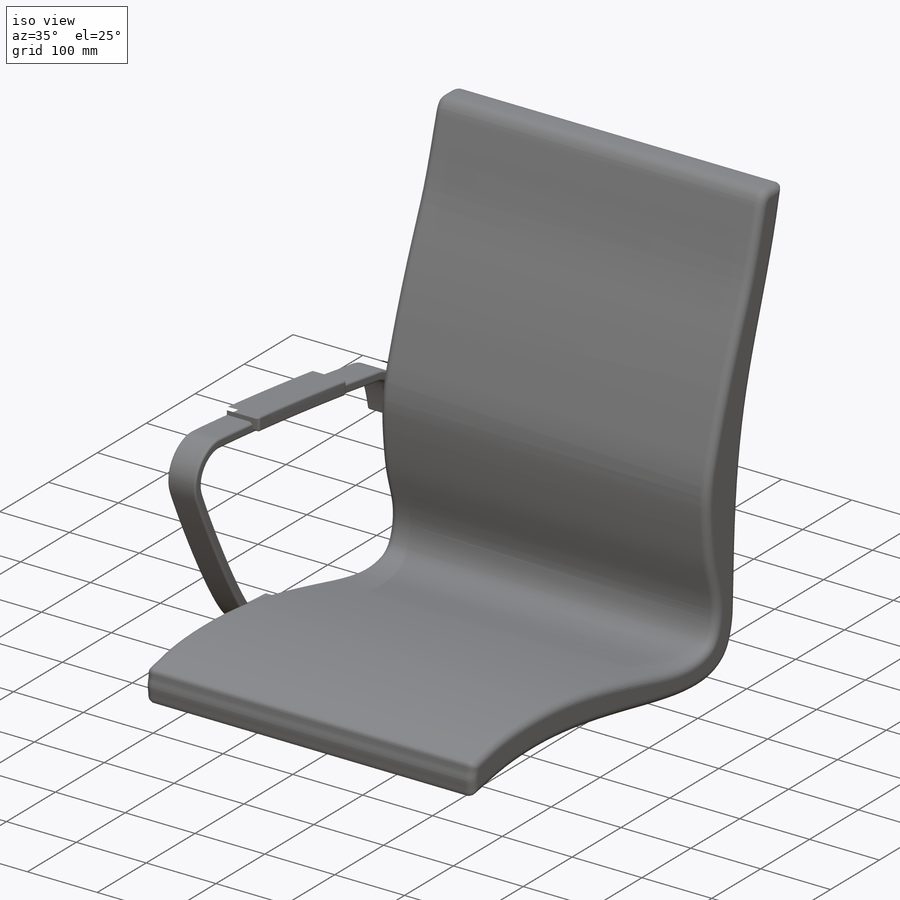
[diagram: iso view]
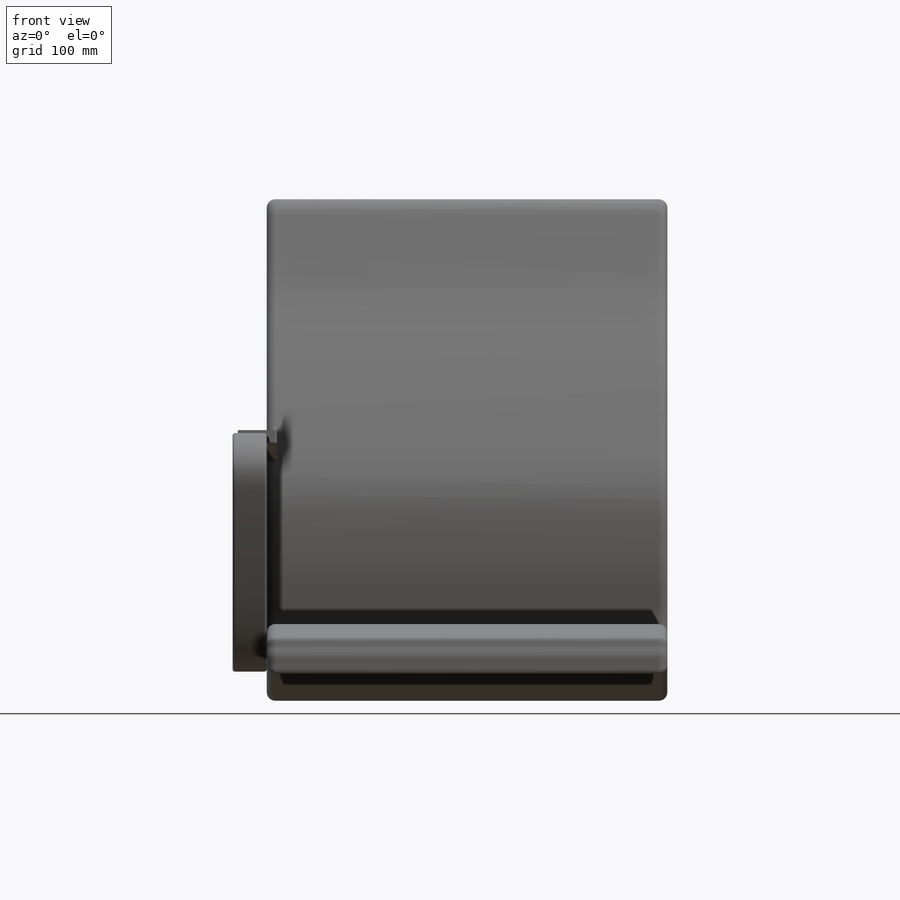
[diagram: front view]
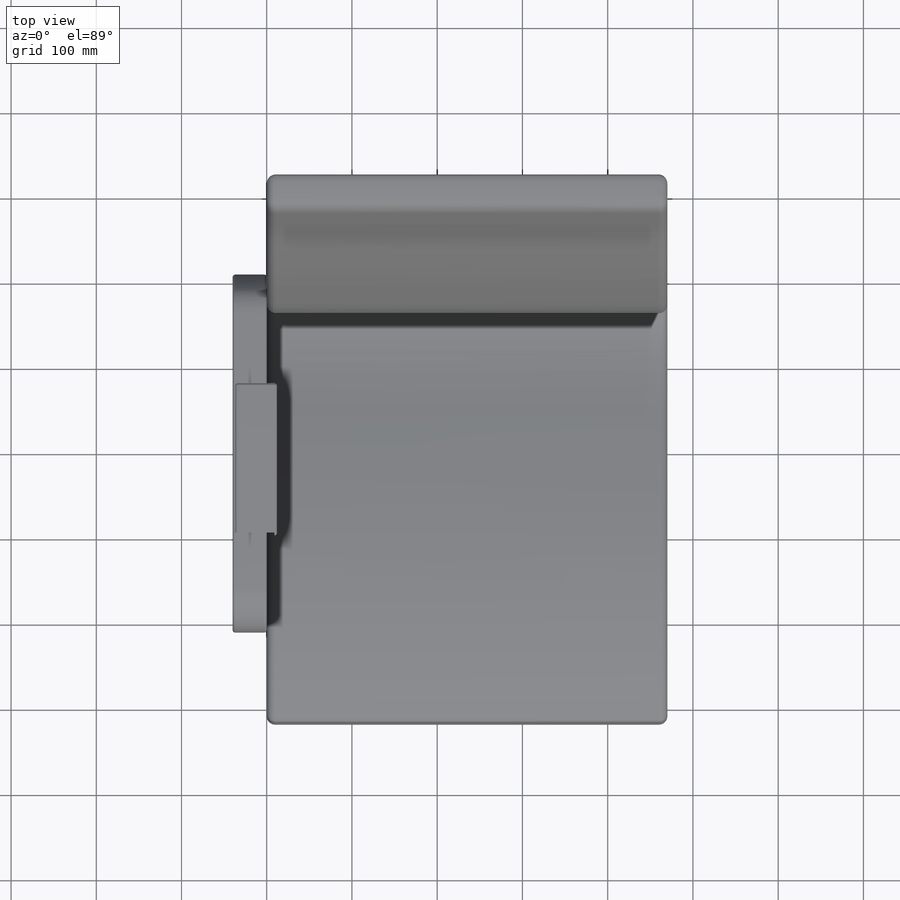
[diagram: top view]
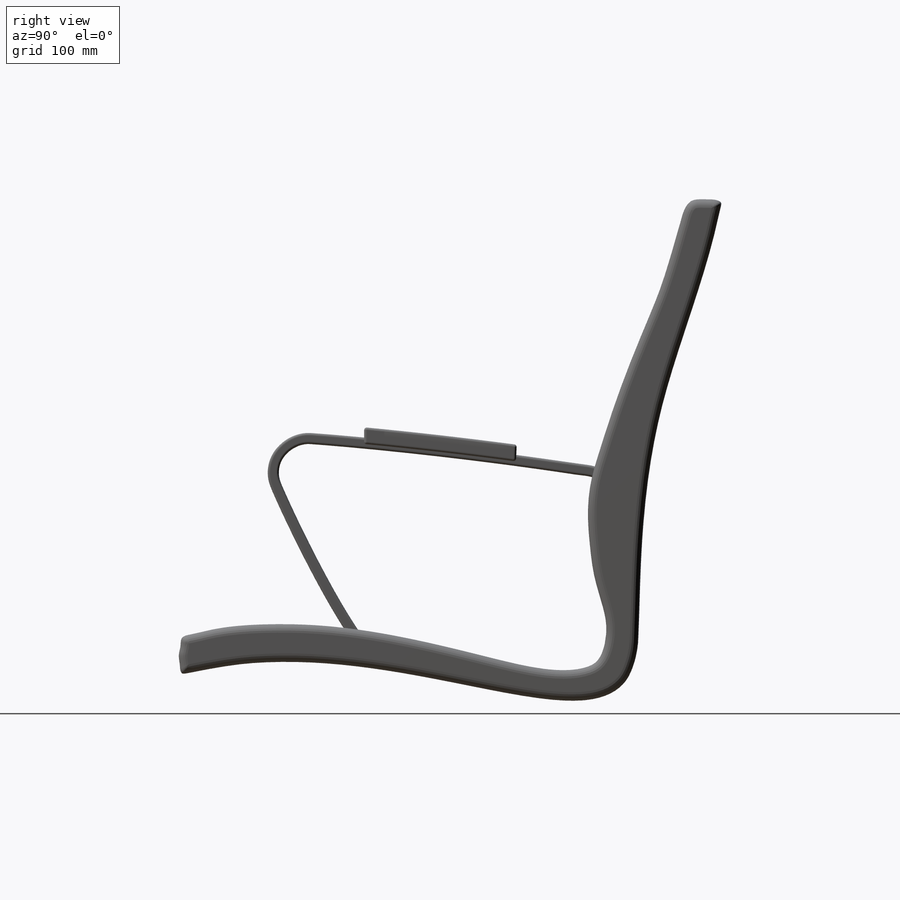
[diagram: right view]
SOLIDWORKS PART (.sldprt)
format: sldprt  version: not decoded by parser v0  size: 1,715,200 bytes
history: native  units: mm
features: sketch x7, fillet x6, plane x3, extrude x2, material x1, sweep x1, mirror x1 (+13 scaffold rows collapsed)
feature tree (34):
  scaffold x13  (default folders/planes/origin — collapsed)
  material  "Material <not specified>"
  sketch  "Sketch1"
  sketch  "Sketch2"
  extrude  "Boss-Extrude1"  Depth=470mm
  fillet  "Fillet1"  Radius=10mm
  sketch  "Sketch3"  dims[D1=13.0mm]
  extrude  "Boss-Extrude2"  Depth=40mm
  fillet  "Fillet2"  Radius=3mm
  fillet  "Fillet3"  Radius=3mm
  fillet  "Fillet4"  Radius=3mm
  sketch  "Sketch4"
  plane  "Plane1"
  sketch  "Sketch6"
  sketch  "Sketch5"  dims[D1=3.0mm D4=3.0mm D5=3.0mm D2=12.0mm D3=12.0mm]
  sweep  "Sweep2"
  fillet  "Fillet5"  Radius=3mm
  fillet  "Fillet6"  Radius=3mm
  plane  "Plane2"
  mirror  "Mirror4"
  plane  "Plane3"  Offset=290mm
  sketch  "Sketch7"  dims[D1=36.0mm]
decode coverage: 11 of 17 modeling features carry decoded parameters
note: suppression state not decoded; provenance and decode notes live in map.json
